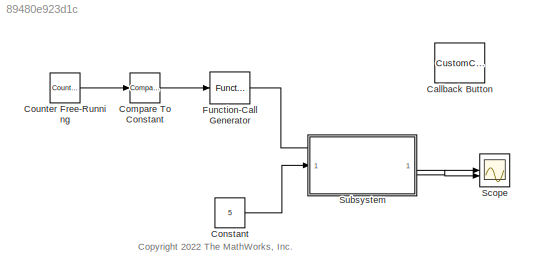
MODEL slx_89480e923d1c
KIND model
CONFIG AbsTol = auto
CONFIG EnableMultiTasking = off
CONFIG FixedStep = auto
CONFIG MaxStep = auto
CONFIG MinStep = auto
CONFIG RelTol = 1e-3
CONFIG SampleTimeConstraint = Unconstrained
CONFIG SolverName = VariableStepAuto
CONFIG StartTime = 0.0
CONFIG StopTime = 10
BLOCK [CustomCallbackButton] Callback Button
  Configuration = {"components":[{"name":"BackgroundImageComponent","settings":{"image":{"size":[0,0],"src":"default","srcOrientation":"Right"},"position":[0,0,1,1]}},{"name":"ButtonStateComponent","settings":{"buttonType":"momentary","clickFcn":"showExample('simulink\/WorkingWithReinitializeFunctionBlockUpdatedExample')","onValue":1,"position":[0,0,1,1],"pressDelay":"500","pressFcn":"","repeatInterval":"0","states...<+2088ch>
  CustomBackgroundColor = {"color":[0.9568627451,0.9568627451,0.9568627451],"show":true}
BLOCK [Reference] Compare To Constant  REF=simulink/Logic and Bit
Operations/Compare
To Constant
  SourceBlock = simulink/Logic and Bit\nOperations/Compare\nTo Constant
  SourceType = Compare To Constant
BLOCK [Constant] Constant
  Value = 5
BLOCK [Reference] Counter Free-Running  REF=simulink/Sources/Counter
Free-Running
  SourceBlock = simulink/Sources/Counter\nFree-Running
  SourceType = Counter Free-Running
BLOCK [Reference] Function-Call Generator  REF=simulink/Ports &
Subsystems/Function-Call
Generator
  SourceBlock = simulink/Ports &\nSubsystems/Function-Call\nGenerator
  SourceType = Function-Call Generator
BLOCK [Scope] Scope
  Floating = off
  NumInputPorts = 2
  ScopeSpecificationString = Simulink.scopes.TimeScopeBlockCfg('CurrentConfiguration', extmgr.ConfigurationSet(extmgr.Configuration('Core','General UI',true),extmgr.Configuration('Core','Source UI',true),extmgr.Configuration('Sources','WiredSimulink',true),extmgr.Configuration('Visuals','Time Domain',true,'SerializedDisplays',{struct('MinYLimReal','-4.375','MaxYLimReal','39.375','YLabelReal','','MinYLimMag','0.00000','MaxYLim...<+1952ch>
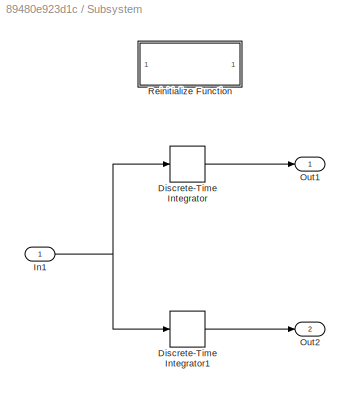
BLOCK [SubSystem] Subsystem
  ShowPortLabels = FromPortBlockName
  ShowSubsystemReinitializePorts = on
  TreatAsAtomicUnit = on
BLOCK [DiscreteIntegrator] Subsystem/Discrete-Time Integrator
  ICPrevOutput = DiscIntNeverNeededParam
  ICPrevScaledInput = DiscIntNeverNeededParam
  InitialConditionSetting = Auto
  SampleTime = -1
BLOCK [DiscreteIntegrator] Subsystem/Discrete-Time Integrator1
  ICPrevOutput = DiscIntNeverNeededParam
  ICPrevScaledInput = DiscIntNeverNeededParam
  InitialConditionSetting = Auto
  SampleTime = -1
BLOCK [Inport] Subsystem/In1
BLOCK [Outport] Subsystem/Out1
  VectorParamsAs1DForOutWhenUnconnected = off
BLOCK [Outport] Subsystem/Out2
  Port = 2
  VectorParamsAs1DForOutWhenUnconnected = off
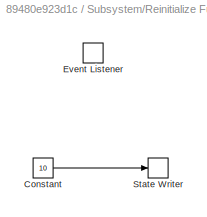
BLOCK [SubSystem] Subsystem/Reinitialize Function
  TreatAsAtomicUnit = on
BLOCK [Constant] Subsystem/Reinitialize Function/Constant
  DisableCoverage = on
  Value = 10
BLOCK [EventListener] Subsystem/Reinitialize Function/Event Listener
  DisableCoverage = on
  EventName = reinit
  EventType = Reinitialize
BLOCK [StateWriter] Subsystem/Reinitialize Function/State Writer
  DisableCoverage = on
  StateOwnerBlock = ../../Discrete-Time Integrator
ANNOTATION (root): <copyright redacted>
LINE Compare To Constant:1 -> Function-Call Generator:1
LINE Constant:1 -> Subsystem:1
LINE Counter Free-Running:1 -> Compare To Constant:1
LINE Function-Call Generator:1 -> Subsystem:event
LINE Subsystem/Discrete-Time Integrator1:1 -> Subsystem/Out2:1
LINE Subsystem/Discrete-Time Integrator:1 -> Subsystem/Out1:1
NET Subsystem/In1:1 -> Subsystem/Discrete-Time Integrator1:1, Subsystem/Discrete-Time Integrator:1
LINE Subsystem/Reinitialize Function/Constant:1 -> Subsystem/Reinitialize Function/State Writer:1
LINE Subsystem:1 -> Scope:1
LINE Subsystem:2 -> Scope:2
note: NET lines group one-source signal fan-out (src -> all destinations, sorted); 1:1 wires keep LINE
